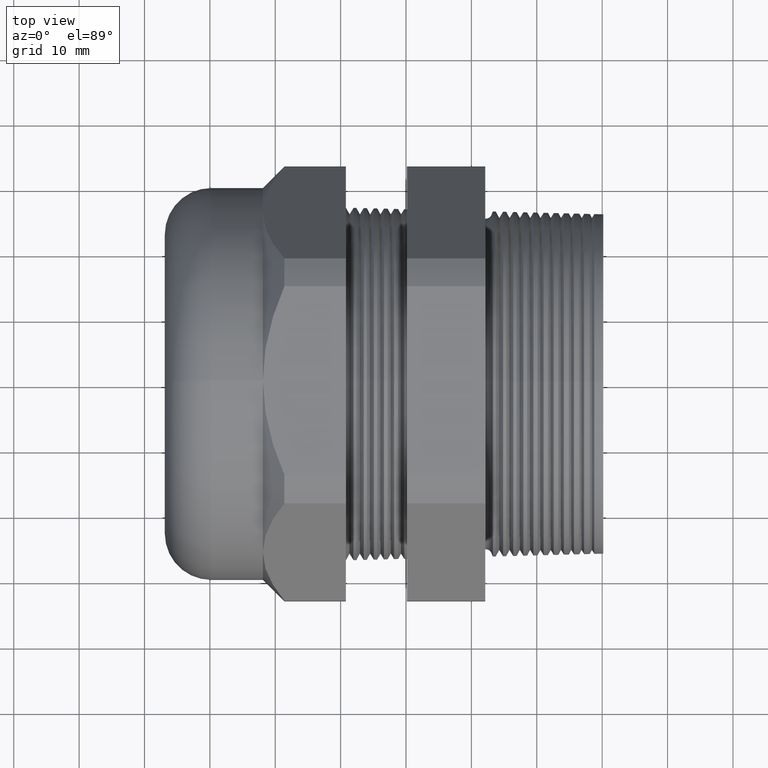
[diagram: clean part render]
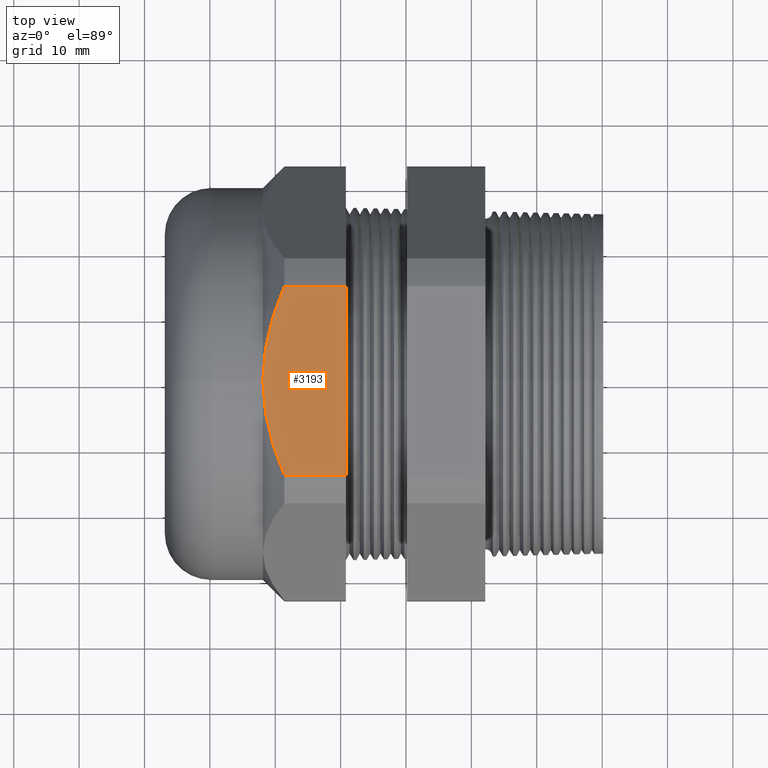
[diagram: same view with one face highlighted and labeled with its STEP entity id]
A machine part, top view. The second image highlights one B-rep face of the part: STEP entity #3193.
In plain terms, the highlighted planar face has unit normal (0, 0, 1).
Its self-contained STEP definition (entity closure, byte-faithful):
#706 = CARTESIAN_POINT ( 'NONE',  ( -1.589010585478253500, 0.3849617848833479200, 1.179999999999999700 ) ) ;
#707 = CARTESIAN_POINT ( 'NONE',  ( -1.565069090820137200, 0.4546817482359246700, 1.179999999999999900 ) ) ;
#708 = CARTESIAN_POINT ( 'NONE',  ( -1.556548450479208400, 0.4778289801658304700, 1.180000000000000200 ) ) ;
#709 = CARTESIAN_POINT ( 'NONE',  ( -1.538704120711870300, 0.5235141874039063200, 1.179999999999999500 ) ) ;
#710 = CARTESIAN_POINT ( 'NONE',  ( -1.529362028805732100, 0.5461090774751346000, 1.179999999999999900 ) ) ;
#711 = CARTESIAN_POINT ( 'NONE',  ( -1.519649999999999700, 0.5684857430050472800, 1.179999999999999900 ) ) ;
#712 = PLANE ( 'NONE',  #714 ) ;
#713 = B_SPLINE_CURVE_WITH_KNOTS ( 'NONE', 3,
 ( #758, #757, #756, #755, #754, #753, #752, #751 ),
 .UNSPECIFIED., .F., .F.,
 ( 4, 2, 2, 4 ),
 ( 0.03787966672358295000, 0.04527044473820664200, 0.04896583374551849400, 0.05266122275283034000 ),
 .UNSPECIFIED. ) ;
#714 = AXIS2_PLACEMENT_3D ( 'NONE', #759, #749, #748 ) ;
#715 = FACE_OUTER_BOUND ( 'NONE', #3194, .T. ) ;
#716 = B_SPLINE_CURVE_WITH_KNOTS ( 'NONE', 3,
 ( #711, #710, #709, #708, #707, #706, #767, #766, #765, #764, #763, #762, #761, #760 ),
 .UNSPECIFIED., .F., .F.,
 ( 4, 2, 2, 2, 2, 2, 4 ),
 ( 0.02312264008600803400, 0.02496726841570489500, 0.02681189674540175900, 0.03050115340479549200, 0.03419041006418922100, 0.03603503839388608900, 0.03787966672358295000 ),
 .UNSPECIFIED. ) ;
#733 = DIRECTION ( 'NONE',  ( -1.000000000000000000, 0.0000000000000000000, 0.0000000000000000000 ) ) ;
#734 = VECTOR ( 'NONE', #733, 39.37007874015748100 ) ;
#735 = CARTESIAN_POINT ( 'NONE',  ( 0.4000000000000000800, 0.5684857430050472800, 1.179999999999999900 ) ) ;
#736 = LINE ( 'NONE', #735, #734 ) ;
#748 = DIRECTION ( 'NONE',  ( 1.000000000000000000, 0.0000000000000000000, 0.0000000000000000000 ) ) ;
#749 = DIRECTION ( 'NONE',  ( 0.0000000000000000000, 0.0000000000000000000, 1.000000000000000000 ) ) ;
#750 = CARTESIAN_POINT ( 'NONE',  ( -1.519649999999999700, -0.5684857430050480600, 1.179999999999999300 ) ) ;
#751 = CARTESIAN_POINT ( 'NONE',  ( -1.519649999999999700, -0.5684857430050480600, 1.179999999999999300 ) ) ;
#752 = CARTESIAN_POINT ( 'NONE',  ( -1.539068768920290900, -0.5237445971720000600, 1.179999999999999900 ) ) ;
#753 = CARTESIAN_POINT ( 'NONE',  ( -1.557001317142279400, -0.4781685191551188200, 1.179999999999999900 ) ) ;
#754 = CARTESIAN_POINT ( 'NONE',  ( -1.589044817027109200, -0.3848694585838953200, 1.179999999999999900 ) ) ;
#755 = CARTESIAN_POINT ( 'NONE',  ( -1.602922490269805800, -0.3377790855168900100, 1.179999999999999700 ) ) ;
#756 = CARTESIAN_POINT ( 'NONE',  ( -1.636945603018218300, -0.1953628694803204700, 1.179999999999999500 ) ) ;
#757 = CARTESIAN_POINT ( 'NONE',  ( -1.649449999999999200, -0.09872307888765807800, 1.179999999999999700 ) ) ;
#758 = CARTESIAN_POINT ( 'NONE',  ( -1.649449999999999600, 0.0000000000000000000, 1.179999999999999900 ) ) ;
#759 = CARTESIAN_POINT ( 'NONE',  ( 0.4000000000000000800, -0.5684857430050472800, 1.179999999999999900 ) ) ;
#760 = CARTESIAN_POINT ( 'NONE',  ( -1.649449999999999600, 0.0000000000000000000, 1.179999999999999900 ) ) ;
#761 = CARTESIAN_POINT ( 'NONE',  ( -1.649449999999999900, 0.02463981298731314500, 1.179999999999999900 ) ) ;
#762 = CARTESIAN_POINT ( 'NONE',  ( -1.648670288809829000, 0.04938518665157104500, 1.180000000000000200 ) ) ;
#763 = CARTESIAN_POINT ( 'NONE',  ( -1.645607269956346700, 0.09839603538494577600, 1.179999999999999500 ) ) ;
#764 = CARTESIAN_POINT ( 'NONE',  ( -1.643325625875083000, 0.1227542664684448000, 1.179999999999999900 ) ) ;
#765 = CARTESIAN_POINT ( 'NONE',  ( -1.634345507774815700, 0.1954099882522379300, 1.180000000000000200 ) ) ;
#766 = CARTESIAN_POINT ( 'NONE',  ( -1.625509814629517900, 0.2432881085125782300, 1.179999999999999900 ) ) ;
#767 = CARTESIAN_POINT ( 'NONE',  ( -1.602840876069865100, 0.3380637169268080300, 1.179999999999999900 ) ) ;
#772 = DIRECTION ( 'NONE',  ( 0.0000000000000000000, -1.000000000000000000, 0.0000000000000000000 ) ) ;
#773 = VECTOR ( 'NONE', #772, 39.37007874015748100 ) ;
#774 = CARTESIAN_POINT ( 'NONE',  ( -1.149449999999999600, 1.064999999999999900, 1.179999999999999900 ) ) ;
#775 = LINE ( 'NONE', #774, #773 ) ;
#776 = CARTESIAN_POINT ( 'NONE',  ( -1.149449999999999400, -0.5684857430050480600, 1.179999999999999300 ) ) ;
#777 = DIRECTION ( 'NONE',  ( -1.000000000000000000, 0.0000000000000000000, 0.0000000000000000000 ) ) ;
#778 = VECTOR ( 'NONE', #777, 39.37007874015748100 ) ;
#779 = CARTESIAN_POINT ( 'NONE',  ( 0.4000000000000000800, -0.5684857430050480600, 1.179999999999999300 ) ) ;
#785 = LINE ( 'NONE', #779, #778 ) ;
#797 = CARTESIAN_POINT ( 'NONE',  ( -1.149449999999999400, 0.5684857430050472800, 1.179999999999999900 ) ) ;
#1001 = CARTESIAN_POINT ( 'NONE',  ( -1.649449999999999600, 0.0000000000000000000, 1.179999999999999900 ) ) ;
#2638 = CARTESIAN_POINT ( 'NONE',  ( -1.519649999999999700, 0.5684857430050472800, 1.179999999999999900 ) ) ;
#3190 = EDGE_CURVE ( 'NONE', #4468, #3310, #716, .T. ) ;
#3191 = ORIENTED_EDGE ( 'NONE', *, *, #3192, .T. ) ;
#3192 = EDGE_CURVE ( 'NONE', #3310, #3196, #713, .T. ) ;
#3193 = ADVANCED_FACE ( 'NONE', ( #715 ), #712, .T. ) ;
#3194 = EDGE_LOOP ( 'NONE', ( #3195, #3197, #3191, #3223, #3216 ) ) ;
#3195 = ORIENTED_EDGE ( 'NONE', *, *, #3201, .T. ) ;
#3196 = VERTEX_POINT ( 'NONE', #750 ) ;
#3197 = ORIENTED_EDGE ( 'NONE', *, *, #3190, .T. ) ;
#3201 = EDGE_CURVE ( 'NONE', #3204, #4468, #736, .T. ) ;
#3204 = VERTEX_POINT ( 'NONE', #797 ) ;
#3213 = EDGE_CURVE ( 'NONE', #3214, #3196, #785, .T. ) ;
#3214 = VERTEX_POINT ( 'NONE', #776 ) ;
#3215 = EDGE_CURVE ( 'NONE', #3204, #3214, #775, .T. ) ;
#3216 = ORIENTED_EDGE ( 'NONE', *, *, #3215, .F. ) ;
#3223 = ORIENTED_EDGE ( 'NONE', *, *, #3213, .F. ) ;
#3310 = VERTEX_POINT ( 'NONE', #1001 ) ;
#4468 = VERTEX_POINT ( 'NONE', #2638 ) ;